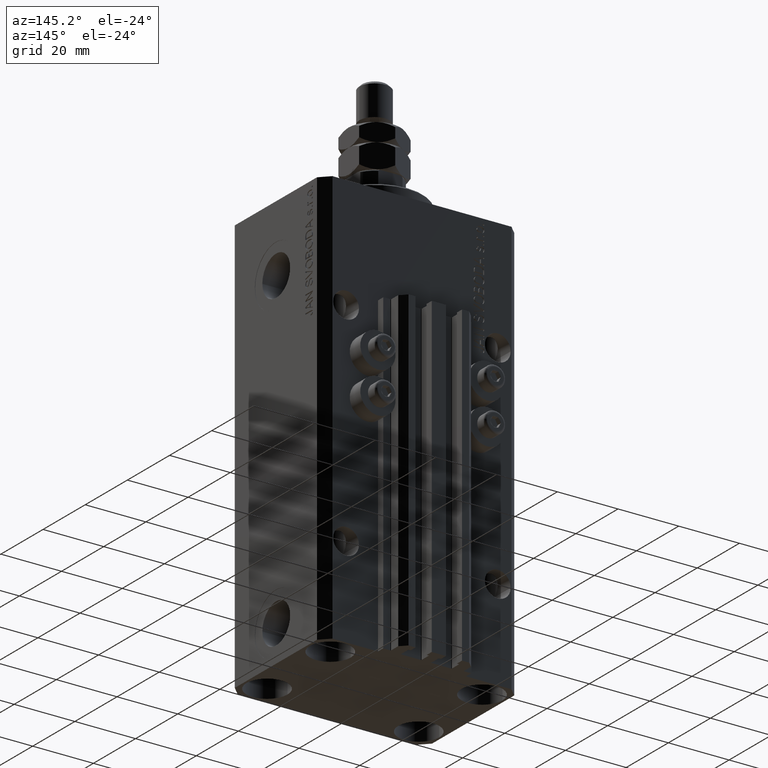
[diagram: clean part render]
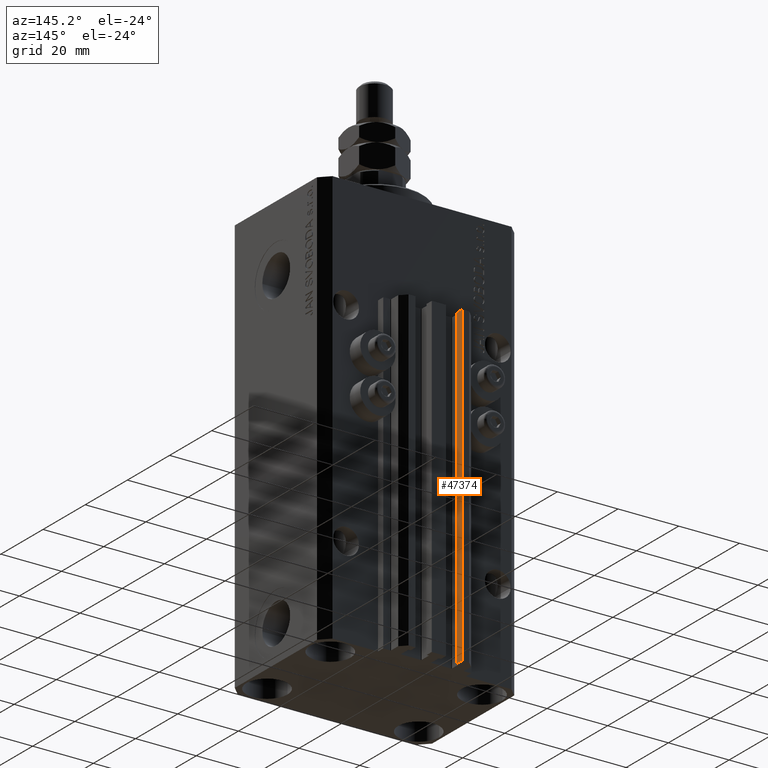
[diagram: same view with one face highlighted and labeled with its STEP entity id]
A machine part, auxiliary view. The second image highlights one B-rep face of the part: STEP entity #47374.
In plain terms, the highlighted planar face has unit normal (1, 0, 0).
Its self-contained STEP definition (entity closure, byte-faithful):
#2130 = CARTESIAN_POINT ( 'NONE',  ( -7.650000000000000355, 30.49999999999948486, -137.0000000000000000 ) ) ;
#2724 = CARTESIAN_POINT ( 'NONE',  ( -7.650000000000000355, 30.49999999999948486, -33.00000000000000000 ) ) ;
#4048 = VECTOR ( 'NONE', #36745, 1000.000000000000000 ) ;
#5611 = CARTESIAN_POINT ( 'NONE',  ( -7.650000000000000355, 28.09999999999948628, -137.0000000000000000 ) ) ;
#5935 = ORIENTED_EDGE ( 'NONE', *, *, #44941, .F. ) ;
#8217 = VERTEX_POINT ( 'NONE', #18553 ) ;
#9230 = EDGE_CURVE ( 'NONE', #49667, #40606, #25818, .T. ) ;
#9379 = DIRECTION ( 'NONE',  ( 1.000000000000000000, 0.000000000000000000, 0.000000000000000000 ) ) ;
#9546 = LINE ( 'NONE', #25427, #45896 ) ;
#10599 = CARTESIAN_POINT ( 'NONE',  ( -7.650000000000000355, 30.49999999999948486, -137.0000000000000000 ) ) ;
#10890 = CARTESIAN_POINT ( 'NONE',  ( -7.650000000000000355, 28.09999999999948628, -137.0000000000000000 ) ) ;
#13156 = FACE_OUTER_BOUND ( 'NONE', #20554, .T. ) ;
#13571 = LINE ( 'NONE', #36249, #4048 ) ;
#14325 = DIRECTION ( 'NONE',  ( 0.000000000000000000, 1.000000000000000000, 0.000000000000000000 ) ) ;
#16267 = EDGE_CURVE ( 'NONE', #8217, #40606, #9546, .T. ) ;
#18553 = CARTESIAN_POINT ( 'NONE',  ( -7.650000000000000355, 28.09999999999948628, -33.00000000000000000 ) ) ;
#20554 = EDGE_LOOP ( 'NONE', ( #22039, #5935, #48638, #41132 ) ) ;
#22039 = ORIENTED_EDGE ( 'NONE', *, *, #16267, .F. ) ;
#23592 = CARTESIAN_POINT ( 'NONE',  ( -7.650000000000000355, 28.09999999999948628, -137.0000000000000000 ) ) ;
#24758 = DIRECTION ( 'NONE',  ( 0.000000000000000000, 0.000000000000000000, -1.000000000000000000 ) ) ;
#25427 = CARTESIAN_POINT ( 'NONE',  ( -7.650000000000000355, 28.09999999999948628, -33.00000000000000000 ) ) ;
#25818 = LINE ( 'NONE', #2130, #28995 ) ;
#26064 = DIRECTION ( 'NONE',  ( 0.000000000000000000, 0.000000000000000000, 1.000000000000000000 ) ) ;
#28995 = VECTOR ( 'NONE', #26064, 1000.000000000000000 ) ;
#30783 = VERTEX_POINT ( 'NONE', #23592 ) ;
#36249 = CARTESIAN_POINT ( 'NONE',  ( -7.650000000000000355, 28.09999999999948628, -137.0000000000000000 ) ) ;
#36745 = DIRECTION ( 'NONE',  ( 0.000000000000000000, 0.000000000000000000, 1.000000000000000000 ) ) ;
#40606 = VERTEX_POINT ( 'NONE', #2724 ) ;
#41132 = ORIENTED_EDGE ( 'NONE', *, *, #9230, .T. ) ;
#42634 = VECTOR ( 'NONE', #49420, 1000.000000000000000 ) ;
#43864 = PLANE ( 'NONE',  #44319 ) ;
#44319 = AXIS2_PLACEMENT_3D ( 'NONE', #5611, #9379, #24758 ) ;
#44364 = EDGE_CURVE ( 'NONE', #30783, #49667, #46143, .T. ) ;
#44941 = EDGE_CURVE ( 'NONE', #30783, #8217, #13571, .T. ) ;
#45896 = VECTOR ( 'NONE', #14325, 1000.000000000000000 ) ;
#46143 = LINE ( 'NONE', #10890, #42634 ) ;
#47374 = ADVANCED_FACE ( 'NONE', ( #13156 ), #43864, .T. ) ;
#48638 = ORIENTED_EDGE ( 'NONE', *, *, #44364, .T. ) ;
#49420 = DIRECTION ( 'NONE',  ( 0.000000000000000000, 1.000000000000000000, 0.000000000000000000 ) ) ;
#49667 = VERTEX_POINT ( 'NONE', #10599 ) ;